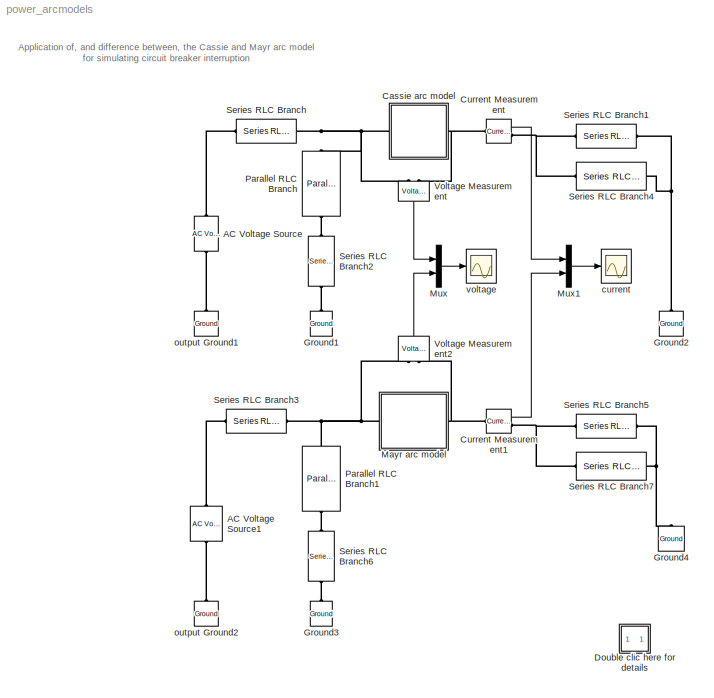
MODEL power_arcmodels
KIND model
BLOCK [Reference] AC Voltage Source  REF=powerlib/Electrical\nSources/AC Voltage Source
  Amplitude = 59196
  AttributesFormatString = \\n
  Description = source block
  Frequency = 60
  Measurements = None
  Phase = 90
  Ports = [0, 0, 0, 0, 0, 1, 1]
  SampleTime = 0
  ShowPortLabels = on
  SourceBlock = powerlib/Electrical\nSources/AC Voltage Source
  SourceType = AC Voltage Source
BLOCK [Reference] AC Voltage Source1  REF=powerlib/Electrical\nSources/AC Voltage Source
  Amplitude = 59196
  AttributesFormatString = \\n
  Description = source block
  Frequency = 60
  Measurements = None
  Phase = 90
  Ports = [0, 0, 0, 0, 0, 1, 1]
  SampleTime = 0
  ShowPortLabels = on
  SourceBlock = powerlib/Electrical\nSources/AC Voltage Source
  SourceType = AC Voltage Source
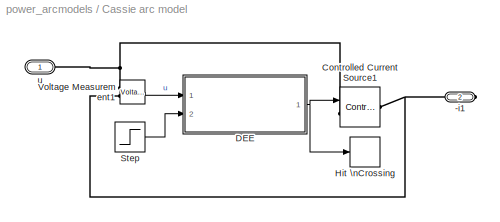
BLOCK [SubSystem] Cassie arc model
  AncestorBlock = arc_model/Cassie arc model
  MaskCallbackString = |||
  MaskDescription = The Cassie arc model with a constant time parameter tau and a constant arc voltage Uc: dlng/dt=1/tau*((u^2/Uc^2)-1.
  MaskDisplay = plot(-15,10,115,90,[-15,15],[50,50],[85,115],[50,50],[15,15,25,25,15],[55,45,45,55,55],[75,75,85,85,75],[55,45,45,55,55],[25,75],[50,70])
  MaskEnableString = on,on,on,on
  MaskHelp = The Cassie arc model with a constant time parameter tau and a constant arc voltage Uc: dlng/dt=1/tau*((u^2/Uc^2)-1.\n\nThe initial conductance of the arc g(0) can be altered. Furthermore, the time at which the contact separation of the circuit breaker takes place can be specified. Until that time the arc model behaves as a conductance with the value g(0).
  MaskIconFrame = off
  MaskIconOpaque = on
  MaskIconRotate = port
  MaskIconUnits = autoscale
  MaskPromptString = tau [s]|Uc [V]|g(0) [S]|circuit breaker contact separation starts at [s]
  MaskStyleString = edit,edit,edit,edit
  MaskTabNameString = ,,,
  MaskToolTipString = on,on,on,on
  MaskTunableValueString = on,on,on,on
  MaskType = Cassie arc model
  MaskValueString = 1.2e-6|3850|1.e4|.02
  MaskVarAliasString = ,,,
  MaskVariables = tau=@1;Uc=@2;x0=@3;cb_trip=@4;
  MaskVisibilityString = on,on,on,on
  MinAlgLoopOccurrences = off
  Ports = [0, 0, 0, 0, 0, 1, 1]
  RTWSystemCode = Auto
  TreatAsAtomicUnit = off
BLOCK [PMIOPort] Cassie arc model/-i1
  Port = 2
  Side = Right
BLOCK [Reference] Cassie arc model/Controlled Current Source1  REF=powerlib/Electrical\nSources/Controlled Current Source
  Amplitude = 0
  AttributesFormatString = \\n
  Description = source block
  Frequency = 0
  Initialize = on
  Measurements = None
  Phase = 0
  Ports = [1, 0, 0, 0, 0, 1, 1]
  SourceBlock = powerlib/Electrical\nSources/Controlled Current Source
  SourceType = AC
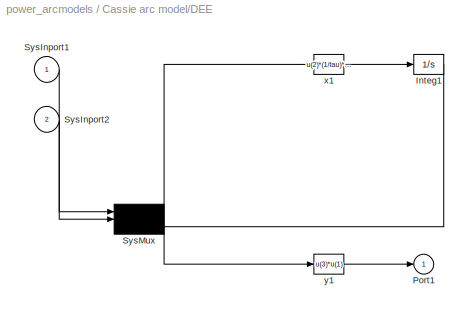
BLOCK [SubSystem] Cassie arc model/DEE
  MaskDisplay = disp('Cassie arc model')
  MaskIconFrame = on
  MaskIconOpaque = on
  MaskIconRotate = none
  MaskIconUnits = autoscale
  MaskType = Differential Equation Editor (DEE)
  MinAlgLoopOccurrences = off
  OpenFcn = diffeqed
  Ports = [2, 1]
  RTWSystemCode = Auto
  TreatAsAtomicUnit = off
BLOCK [Integrator] Cassie arc model/DEE/Integ1
  InitialCondition = x0
  Ports = [1, 1]
  ZeroCross = off
BLOCK [Outport] Cassie arc model/DEE/Port1
  IconDisplay = Port number
  InitialOutput = 0
BLOCK [Inport] Cassie arc model/DEE/SysInport1
  IconDisplay = Port number
  LatchInput = off
  Port = 1
BLOCK [Inport] Cassie arc model/DEE/SysInport2
  IconDisplay = Port number
  LatchInput = off
  Port = 2
BLOCK [Mux] Cassie arc model/DEE/SysMux
  Inputs = 3
  Ports = [3, 1]
BLOCK [Fcn] Cassie arc model/DEE/x1
  Expr = u(2)*(1/tau)*((u(3)*u(1)^2)/(Uc^2)-u(3))
BLOCK [Fcn] Cassie arc model/DEE/y1
  Expr = u(3)*u(1)
BLOCK [HitCross] Cassie arc model/Hit \nCrossing
  HitCrossingDirection = either
  Ports = [1]
  ShowOutputPort = off
  ZeroCross = off
BLOCK [Step] Cassie arc model/Step
  SampleTime = 0
  Time = cb_trip
  ZeroCross = off
BLOCK [Reference] Cassie arc model/Voltage Measurement1  REF=powerlib/Measurements/Voltage Measurement
  AttributesFormatString = \\n
  OutputType = Magnitude
  PSBequivalent = 0
  PhasorSimulation = off
  Ports = [0, 1, 0, 0, 0, 2]
  ShowPortLabels = on
  SourceBlock = powerlib/Measurements/Voltage Measurement
  SourceType = Voltage Measurement
  Tag = PoWeRsYsTeMmEaSuReMeNt
BLOCK [PMIOPort] Cassie arc model/u
  Port = 1
  Side = Left
BLOCK [Reference] Current Measurement  REF=powerlib/Measurements/Current Measurement
  AttributesFormatString = \\n
  OutputType = Magnitude
  PSBequivalent = 0
  PhasorSimulation = off
  Ports = [0, 1, 0, 0, 0, 1, 1]
  ShowPortLabels = on
  SourceBlock = powerlib/Measurements/Current Measurement
  SourceType = Current Measurement
  Tag = PoWeRsYsTeMmEaSuReMeNt
BLOCK [Reference] Current Measurement1  REF=powerlib/Measurements/Current Measurement
  AttributesFormatString = \\n
  OutputType = Magnitude
  PSBequivalent = 0
  PhasorSimulation = off
  Ports = [0, 1, 0, 0, 0, 1, 1]
  ShowPortLabels = on
  SourceBlock = powerlib/Measurements/Current Measurement
  SourceType = Current Measurement
  Tag = PoWeRsYsTeMmEaSuReMeNt
BLOCK [SubSystem] Double clic here for details
  MaskDisplay = disp('?')
  MaskIconFrame = on
  MaskIconOpaque = on
  MaskIconRotate = none
  MaskIconUnits = autoscale
  MinAlgLoopOccurrences = off
  Ports = []
  RTWSystemCode = Auto
  TreatAsAtomicUnit = off
BLOCK [Reference] Ground1  REF=powerlib/Elements/Ground
  AttributesFormatString = \\n
  LConnTagsString = a
  LeftPortType = p1
  PhysicalDomain = powersysdomain
  Ports = [0, 0, 0, 0, 0, 1]
  RightPortType = p1
  SourceBlock = powerlib/Elements/Ground
  SourceType = Ground
  SubClassName = unknown
BLOCK [Reference] Ground2  REF=powerlib/Elements/Ground
  AttributesFormatString = \\n
  LConnTagsString = a
  LeftPortType = p1
  PhysicalDomain = powersysdomain
  Ports = [0, 0, 0, 0, 0, 1]
  RightPortType = p1
  SourceBlock = powerlib/Elements/Ground
  SourceType = Ground
  SubClassName = unknown
BLOCK [Reference] Ground3  REF=powerlib/Elements/Ground
  AttributesFormatString = \\n
  LConnTagsString = a
  LeftPortType = p1
  PhysicalDomain = powersysdomain
  Ports = [0, 0, 0, 0, 0, 1]
  RightPortType = p1
  SourceBlock = powerlib/Elements/Ground
  SourceType = Ground
  SubClassName = unknown
BLOCK [Reference] Ground4  REF=powerlib/Elements/Ground
  AttributesFormatString = \\n
  LConnTagsString = a
  LeftPortType = p1
  PhysicalDomain = powersysdomain
  Ports = [0, 0, 0, 0, 0, 1]
  RightPortType = p1
  SourceBlock = powerlib/Elements/Ground
  SourceType = Ground
  SubClassName = unknown
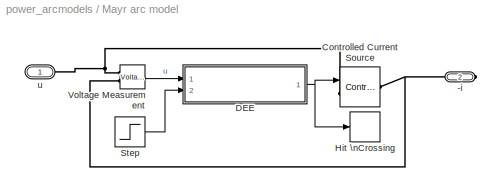
BLOCK [SubSystem] Mayr arc model
  AncestorBlock = arc_model/Mayr arc model
  MaskCallbackString = |||
  MaskDescription = The Mayr arc model with a constant time parameter tau and constant cooling power P: dlng/dt=1/tau*((ui/P)-1).
  MaskDisplay = plot(-15,10,115,90,[-15,15],[50,50],[85,115],[50,50],[15,15,25,25,15],[55,45,45,55,55],[75,75,85,85,75],[55,45,45,55,55],[25,75],[50,70])
  MaskEnableString = on,on,on,on
  MaskHelp = The Mayr arc model with a constant time parameter tau and constant cooling power P: dlng/dt=1/tau*((ui/P)-1).\n\nThe initial conductance of the arc g(0) can be altered. Furthermore, the time at which the contact separation of the circuit breaker takes place can be specified. Until that time the arc model behaves as a conductance with the value g(0).
  MaskIconFrame = off
  MaskIconOpaque = on
  MaskIconRotate = port
  MaskIconUnits = autoscale
  MaskPromptString = tau [s]|P [W]|g(0) [S]|circuit breaker contact separation starts at [s]
  MaskStyleString = edit,edit,edit,edit
  MaskTabNameString = ,,,
  MaskToolTipString = on,on,on,on
  MaskTunableValueString = on,on,on,on
  MaskType = Mayr arc model
  MaskValueString = 0.3e-6|30900|1.e4|.02
  MaskVarAliasString = ,,,
  MaskVariables = tau=@1;P=@2;x0=@3;cb_trip=@4;
  MaskVisibilityString = on,on,on,on
  MinAlgLoopOccurrences = off
  Ports = [0, 0, 0, 0, 0, 1, 1]
  RTWSystemCode = Auto
  TreatAsAtomicUnit = off
BLOCK [PMIOPort] Mayr arc model/-i
  Port = 2
  Side = Right
BLOCK [Reference] Mayr arc model/Controlled Current Source  REF=powerlib/Electrical\nSources/Controlled Current Source
  Amplitude = 0
  AttributesFormatString = \\n
  Description = source block
  Frequency = 0
  Initialize = on
  Measurements = None
  Phase = 0
  Ports = [1, 0, 0, 0, 0, 1, 1]
  SourceBlock = powerlib/Electrical\nSources/Controlled Current Source
  SourceType = AC
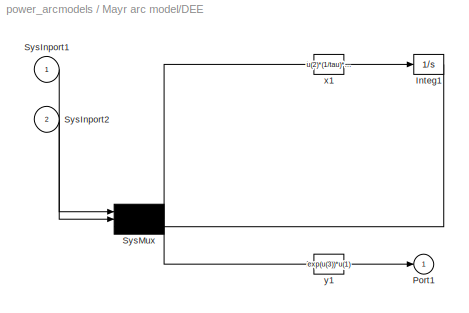
BLOCK [SubSystem] Mayr arc model/DEE
  MaskDisplay = disp('Mayr arc model')
  MaskIconFrame = on
  MaskIconOpaque = on
  MaskIconRotate = none
  MaskIconUnits = autoscale
  MaskType = Differential Equation Editor (DEE)
  MinAlgLoopOccurrences = off
  OpenFcn = diffeqed
  Ports = [2, 1]
  RTWSystemCode = Auto
  TreatAsAtomicUnit = off
BLOCK [Integrator] Mayr arc model/DEE/Integ1
  InitialCondition = log(x0)
  Ports = [1, 1]
  ZeroCross = off
BLOCK [Outport] Mayr arc model/DEE/Port1
  IconDisplay = Port number
  InitialOutput = 0
BLOCK [Inport] Mayr arc model/DEE/SysInport1
  IconDisplay = Port number
  LatchInput = off
  Port = 1
BLOCK [Inport] Mayr arc model/DEE/SysInport2
  IconDisplay = Port number
  LatchInput = off
  Port = 2
BLOCK [Mux] Mayr arc model/DEE/SysMux
  Inputs = 3
  Ports = [3, 1]
BLOCK [Fcn] Mayr arc model/DEE/x1
  Expr = u(2)*(1/tau)*((exp(u(3))*u(1)^2)/P-1)
BLOCK [Fcn] Mayr arc model/DEE/y1
  Expr = exp(u(3))*u(1)
BLOCK [HitCross] Mayr arc model/Hit \nCrossing
  HitCrossingDirection = either
  Ports = [1]
  ShowOutputPort = off
  ZeroCross = off
BLOCK [Step] Mayr arc model/Step
  SampleTime = 0
  Time = cb_trip
  ZeroCross = off
BLOCK [Reference] Mayr arc model/Voltage Measurement  REF=powerlib/Measurements/Voltage Measurement
  AttributesFormatString = \\n
  OutputType = Magnitude
  PSBequivalent = 0
  PhasorSimulation = off
  Ports = [0, 1, 0, 0, 0, 2]
  ShowPortLabels = on
  SourceBlock = powerlib/Measurements/Voltage Measurement
  SourceType = Voltage Measurement
  Tag = PoWeRsYsTeMmEaSuReMeNt
BLOCK [PMIOPort] Mayr arc model/u
  Port = 1
  Side = Left
BLOCK [Mux] Mux
  DisplayOption = bar
  Inputs = 2
  Ports = [2, 1]
BLOCK [Mux] Mux1
  DisplayOption = bar
  Inputs = 2
  Ports = [2, 1]
BLOCK [Reference] Parallel RLC Branch  REF=powerlib/Elements/Parallel RLC Branch
  AttributesFormatString = \\n
  Capacitance = 0
  Inductance = 5.28e-3
  LConnTagsString = a
  LeftPortType = p1
  Measurements = None
  PhysicalDomain = powersysdomain
  Ports = [0, 0, 0, 0, 0, 1, 1]
  RConnTagsString = __new0
  Resistance = 29.8
  RightPortType = p1
  SourceBlock = powerlib/Elements/Parallel RLC Branch
  SourceType = Parallel RLC Branch
  SubClassName = unknown
BLOCK [Reference] Parallel RLC Branch1  REF=powerlib/Elements/Parallel RLC Branch
  AttributesFormatString = \\n
  Capacitance = 0
  Inductance = 5.28e-3
  LConnTagsString = a
  LeftPortType = p1
  Measurements = None
  PhysicalDomain = powersysdomain
  Ports = [0, 0, 0, 0, 0, 1, 1]
  RConnTagsString = __new0
  Resistance = 29.8
  RightPortType = p1
  SourceBlock = powerlib/Elements/Parallel RLC Branch
  SourceType = Parallel RLC Branch
  SubClassName = unknown
BLOCK [Reference] Series RLC Branch  REF=powerlib/Elements/Series RLC Branch
  AttributesFormatString = \\n
  Capacitance = inf
  Inductance = 3.52e-03
  LConnTagsString = __new0
  LeftPortType = p1
  Measurements = None
  PhysicalDomain = powersysdomain
  Ports = [0, 0, 0, 0, 0, 1, 1]
  RConnTagsString = __new0
  Resistance = 0
  RightPortType = p1
  SourceBlock = powerlib/Elements/Series RLC Branch
  SourceType = Series RLC Branch
  SubClassName = unknown
BLOCK [Reference] Series RLC Branch1  REF=powerlib/Elements/Series RLC Branch
  AttributesFormatString = \\n
  Capacitance = inf
  Inductance = 6.256e-4
  LConnTagsString = __new0
  LeftPortType = p1
  Measurements = None
  PhysicalDomain = powersysdomain
  Ports = [0, 0, 0, 0, 0, 1, 1]
  RConnTagsString = __new0
  Resistance = 0
  RightPortType = p1
  SourceBlock = powerlib/Elements/Series RLC Branch
  SourceType = Series RLC Branch
  SubClassName = unknown
BLOCK [Reference] Series RLC Branch2  REF=powerlib/Elements/Series RLC Branch
  AttributesFormatString = \\n
  Capacitance = 1.98e-6
  Inductance = 0
  LConnTagsString = __new0
  LeftPortType = p1
  Measurements = None
  PhysicalDomain = powersysdomain
  Ports = [0, 0, 0, 0, 0, 1, 1]
  RConnTagsString = __new0
  Resistance = 0
  RightPortType = p1
  SourceBlock = powerlib/Elements/Series RLC Branch
  SourceType = Series RLC Branch
  SubClassName = unknown
BLOCK [Reference] Series RLC Branch3  REF=powerlib/Elements/Series RLC Branch
  AttributesFormatString = \\n
  Capacitance = inf
  Inductance = 3.52e-03
  LConnTagsString = __new0
  LeftPortType = p1
  Measurements = None
  PhysicalDomain = powersysdomain
  Ports = [0, 0, 0, 0, 0, 1, 1]
  RConnTagsString = __new0
  Resistance = 0
  RightPortType = p1
  SourceBlock = powerlib/Elements/Series RLC Branch
  SourceType = Series RLC Branch
  SubClassName = unknown
BLOCK [Reference] Series RLC Branch4  REF=powerlib/Elements/Series RLC Branch
  AttributesFormatString = \\n
  Capacitance = 1.93e-9
  Inductance = 0
  LConnTagsString = __new0
  LeftPortType = p1
  Measurements = None
  PhysicalDomain = powersysdomain
  Ports = [0, 0, 0, 0, 0, 1, 1]
  RConnTagsString = __new0
  Resistance = 450
  RightPortType = p1
  SourceBlock = powerlib/Elements/Series RLC Branch
  SourceType = Series RLC Branch
  SubClassName = unknown
BLOCK [Reference] Series RLC Branch5  REF=powerlib/Elements/Series RLC Branch
  AttributesFormatString = \\n
  Capacitance = inf
  Inductance = 6.256e-4
  LConnTagsString = __new0
  LeftPortType = p1
  Measurements = None
  PhysicalDomain = powersysdomain
  Ports = [0, 0, 0, 0, 0, 1, 1]
  RConnTagsString = __new0
  Resistance = 0
  RightPortType = p1
  SourceBlock = powerlib/Elements/Series RLC Branch
  SourceType = Series RLC Branch
  SubClassName = unknown
BLOCK [Reference] Series RLC Branch6  REF=powerlib/Elements/Series RLC Branch
  AttributesFormatString = \\n
  Capacitance = 1.98e-6
  Inductance = 0
  LConnTagsString = __new0
  LeftPortType = p1
  Measurements = None
  PhysicalDomain = powersysdomain
  Ports = [0, 0, 0, 0, 0, 1, 1]
  RConnTagsString = __new0
  Resistance = 0
  RightPortType = p1
  SourceBlock = powerlib/Elements/Series RLC Branch
  SourceType = Series RLC Branch
  SubClassName = unknown
BLOCK [Reference] Series RLC Branch7  REF=powerlib/Elements/Series RLC Branch
  AttributesFormatString = \\n
  Capacitance = 1.93e-9
  Inductance = 0
  LConnTagsString = __new0
  LeftPortType = p1
  Measurements = None
  PhysicalDomain = powersysdomain
  Ports = [0, 0, 0, 0, 0, 1, 1]
  RConnTagsString = __new0
  Resistance = 450
  RightPortType = p1
  SourceBlock = powerlib/Elements/Series RLC Branch
  SourceType = Series RLC Branch
  SubClassName = unknown
BLOCK [Reference] Voltage Measurement  REF=powerlib/Measurements/Voltage Measurement
  AttributesFormatString = \\n
  OutputType = Magnitude
  PSBequivalent = 0
  PhasorSimulation = off
  Ports = [0, 1, 0, 0, 0, 2]
  ShowPortLabels = on
  SourceBlock = powerlib/Measurements/Voltage Measurement
  SourceType = Voltage Measurement
  Tag = PoWeRsYsTeMmEaSuReMeNt
BLOCK [Reference] Voltage Measurement2  REF=powerlib/Measurements/Voltage Measurement
  AttributesFormatString = \\n
  OutputType = Magnitude
  PSBequivalent = 0
  PhasorSimulation = off
  Ports = [0, 1, 0, 0, 0, 2]
  ShowPortLabels = on
  SourceBlock = powerlib/Measurements/Voltage Measurement
  SourceType = Voltage Measurement
  Tag = PoWeRsYsTeMmEaSuReMeNt
BLOCK [Scope] current
  DataFormat = StructureWithTime
  LimitDataPoints = off
  NumInputPorts = 1
  Ports = [1]
  TimeRange = 0.04
  YMax = 40000
  YMin = -40000
  ZoomMode = xonly
BLOCK [Reference] output Ground1  REF=powerlib/Elements/Ground
  AttributesFormatString = \\n
  LConnTagsString = a
  LeftPortType = p1
  PhysicalDomain = powersysdomain
  Ports = [0, 0, 0, 0, 0, 1]
  RightPortType = p1
  SourceBlock = powerlib/Elements/Ground
  SourceType = Ground
  SubClassName = unknown
BLOCK [Reference] output Ground2  REF=powerlib/Elements/Ground
  AttributesFormatString = \\n
  LConnTagsString = a
  LeftPortType = p1
  PhysicalDomain = powersysdomain
  Ports = [0, 0, 0, 0, 0, 1]
  RightPortType = p1
  SourceBlock = powerlib/Elements/Ground
  SourceType = Ground
  SubClassName = unknown
BLOCK [Scope] voltage
  DataFormat = StructureWithTime
  LimitDataPoints = off
  NumInputPorts = 1
  Ports = [1]
  TimeRange = 0.04
  YMax = 60000
  YMin = -100000
  ZoomMode = yonly
ANNOTATION (root): Application of, and difference between, the Cassie and Mayr arc model\nfor simulating circuit breaker interruption
ANNOTATION Double clic here for details: A blockset containing 7 arc models can be downloaded freely from the following website of the\nPower Systems Laboratory of the Delft University of Technology: http://eps.et.tudelft.nl\nA PDF manual with installation instructions, arc model descriptions and references to relevant\nliterature is included.
ANNOTATION Double clic here for details: Arc Model Blockset at http://eps.et.tudelft.nl
ANNOTATION Double clic here for details: Circuit Description
ANNOTATION Double clic here for details: Demonstration
ANNOTATION Double clic here for details: P.H. Schavemaker, Power Systems Laboratory,\nDelft University of Technology, the Netherlands\n\<email>
ANNOTATION Double clic here for details: The circuit breaker interruption can be started by means of the 'Start/Pause Simulation' button.\nThe voltages over both the Cassie (yellow) and Mayr arc model are displayed in one scope.\nThe currents through both the Cassie (yellow) and Mayr arc model are displayed in one scope.\n\nThe following observations become clear from the simulation:\nThe arc behaves as a non-linear resistance; therefore...<+986ch>
ANNOTATION Double clic here for details: This demonstration illustrates use of the Cassie and Mayr arc model\nfor simulating high voltage circuit breaker interruption
ANNOTATION Double clic here for details: Two identical circuits are displayed: one with a Cassie and one with a Mayr arc model.\nThe circuit is a simple representation of a circuit breaker interrupting a short-line fault.\nAt the source side of the circuit breaker a circuit is present for reproducing a (2-parameter\nIEC) transient recovery voltage, while the RLC circuit at the line side represents a short\ntransmission line that is short...<+114ch>
LINE Cassie arc model/DEE/Integ1:1 -> Cassie arc model/DEE/SysMux:3
LINE Cassie arc model/DEE/SysInport1:1 -> Cassie arc model/DEE/SysMux:1
LINE Cassie arc model/DEE/SysInport2:1 -> Cassie arc model/DEE/SysMux:2
NET Cassie arc model/DEE/SysMux:1 -> Cassie arc model/DEE/x1:1, Cassie arc model/DEE/y1:1
LINE Cassie arc model/DEE/x1:1 -> Cassie arc model/DEE/Integ1:1
LINE Cassie arc model/DEE/y1:1 -> Cassie arc model/DEE/Port1:1
NET Cassie arc model/DEE:1 -> Cassie arc model/Controlled Current Source1:1, Cassie arc model/Hit \nCrossing:1
LINE Cassie arc model/Step:1 -> Cassie arc model/DEE:2
LINE Cassie arc model/Voltage Measurement1:1 -> Cassie arc model/DEE:1
LINE Current Measurement1:1 -> Mux1:2
LINE Current Measurement:1 -> Mux1:1
LINE Mayr arc model/DEE/Integ1:1 -> Mayr arc model/DEE/SysMux:3
LINE Mayr arc model/DEE/SysInport1:1 -> Mayr arc model/DEE/SysMux:1
LINE Mayr arc model/DEE/SysInport2:1 -> Mayr arc model/DEE/SysMux:2
NET Mayr arc model/DEE/SysMux:1 -> Mayr arc model/DEE/x1:1, Mayr arc model/DEE/y1:1
LINE Mayr arc model/DEE/x1:1 -> Mayr arc model/DEE/Integ1:1
LINE Mayr arc model/DEE/y1:1 -> Mayr arc model/DEE/Port1:1
NET Mayr arc model/DEE:1 -> Mayr arc model/Controlled Current Source:1, Mayr arc model/Hit \nCrossing:1
LINE Mayr arc model/Step:1 -> Mayr arc model/DEE:2
LINE Mayr arc model/Voltage Measurement:1 -> Mayr arc model/DEE:1
LINE Mux1:1 -> current:1
LINE Mux:1 -> voltage:1
LINE Voltage Measurement2:1 -> Mux:2
LINE Voltage Measurement:1 -> Mux:1
PLINE AC Voltage Source1:LConn1 -- output Ground2:LConn1
PLINE AC Voltage Source1:RConn1 -- Series RLC Branch3:LConn1
PLINE AC Voltage Source:LConn1 -- output Ground1:LConn1
PLINE AC Voltage Source:RConn1 -- Series RLC Branch:LConn1
PNET net1: Cassie arc model/-i1:RConn1 -- Cassie arc model/Controlled Current Source1:RConn1 -- Cassie arc model/Voltage Measurement1:LConn2
PNET net2: Cassie arc model/Controlled Current Source1:LConn1 -- Cassie arc model/Voltage Measurement1:LConn1 -- Cassie arc model/u:RConn1
PNET net3: Cassie arc model:LConn1 -- Parallel RLC Branch:LConn1 -- Series RLC Branch:RConn1 -- Voltage Measurement:LConn1
PNET net4: Cassie arc model:RConn1 -- Current Measurement:LConn1 -- Voltage Measurement:LConn2
PNET net5: Current Measurement1:LConn1 -- Mayr arc model:RConn1 -- Voltage Measurement2:LConn2
PNET net6: Current Measurement1:RConn1 -- Series RLC Branch5:LConn1 -- Series RLC Branch7:LConn1
PNET net7: Current Measurement:RConn1 -- Series RLC Branch1:LConn1 -- Series RLC Branch4:LConn1
PLINE Ground1:LConn1 -- Series RLC Branch2:RConn1
PNET net8: Ground2:LConn1 -- Series RLC Branch1:RConn1 -- Series RLC Branch4:RConn1
PLINE Ground3:LConn1 -- Series RLC Branch6:RConn1
PNET net9: Ground4:LConn1 -- Series RLC Branch5:RConn1 -- Series RLC Branch7:RConn1
PNET net10: Mayr arc model/-i:RConn1 -- Mayr arc model/Controlled Current Source:RConn1 -- Mayr arc model/Voltage Measurement:LConn2
PNET net11: Mayr arc model/Controlled Current Source:LConn1 -- Mayr arc model/Voltage Measurement:LConn1 -- Mayr arc model/u:RConn1
PNET net12: Mayr arc model:LConn1 -- Parallel RLC Branch1:LConn1 -- Series RLC Branch3:RConn1 -- Voltage Measurement2:LConn1
PLINE Parallel RLC Branch1:RConn1 -- Series RLC Branch6:LConn1
PLINE Parallel RLC Branch:RConn1 -- Series RLC Branch2:LConn1
note: NET lines group one-source signal fan-out (src -> all destinations, sorted); 1:1 wires keep LINE; PNET lines group multi-terminal physical nets as a canonical sorted terminal list (undirected conserving connections); 2-terminal nets keep the pairwise PLINE form
